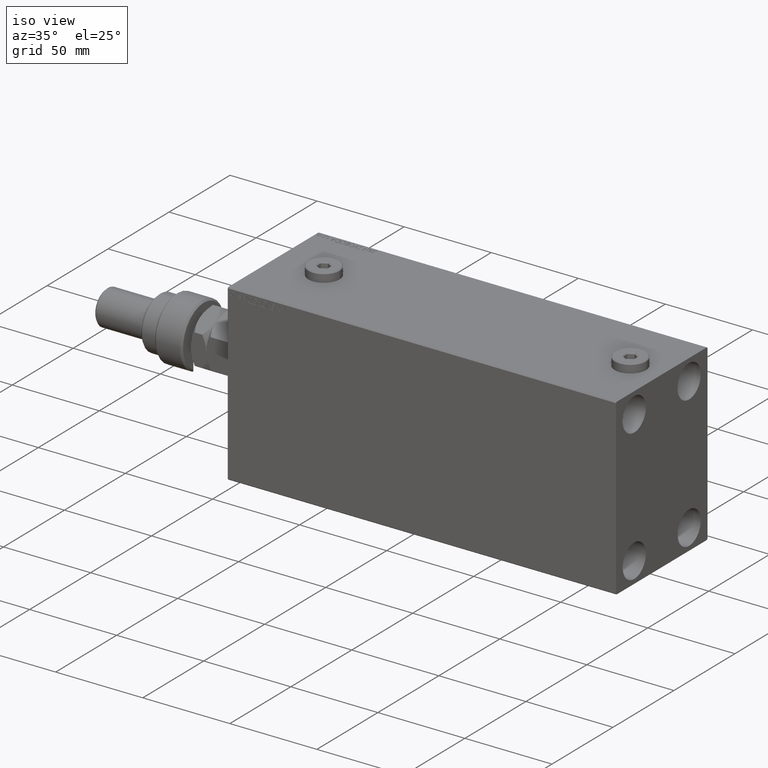
[diagram: clean part render]
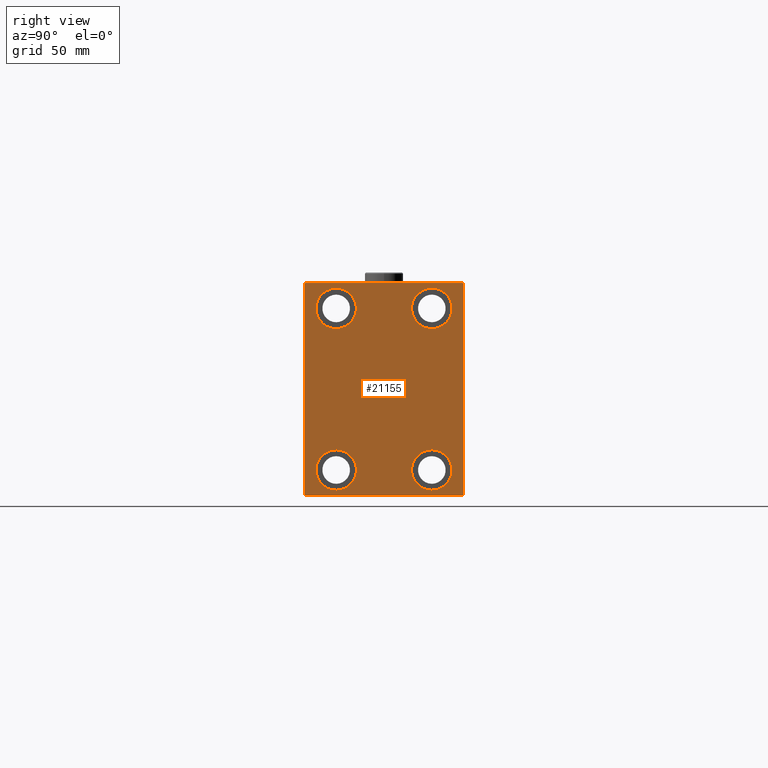
[diagram: tour spotlight — one face highlighted and labeled with its STEP entity id]
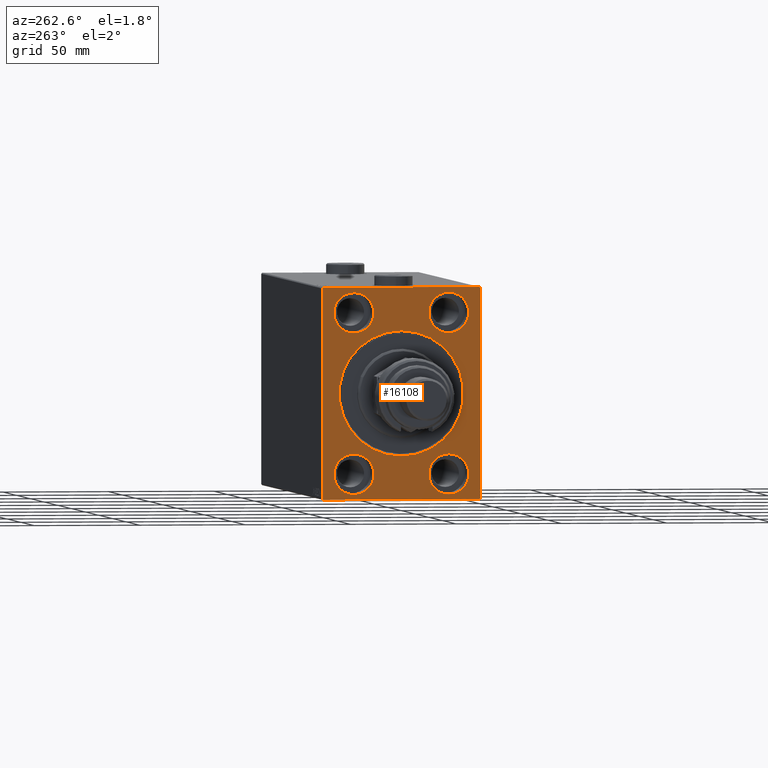
[diagram: tour spotlight — one face highlighted and labeled with its STEP entity id]
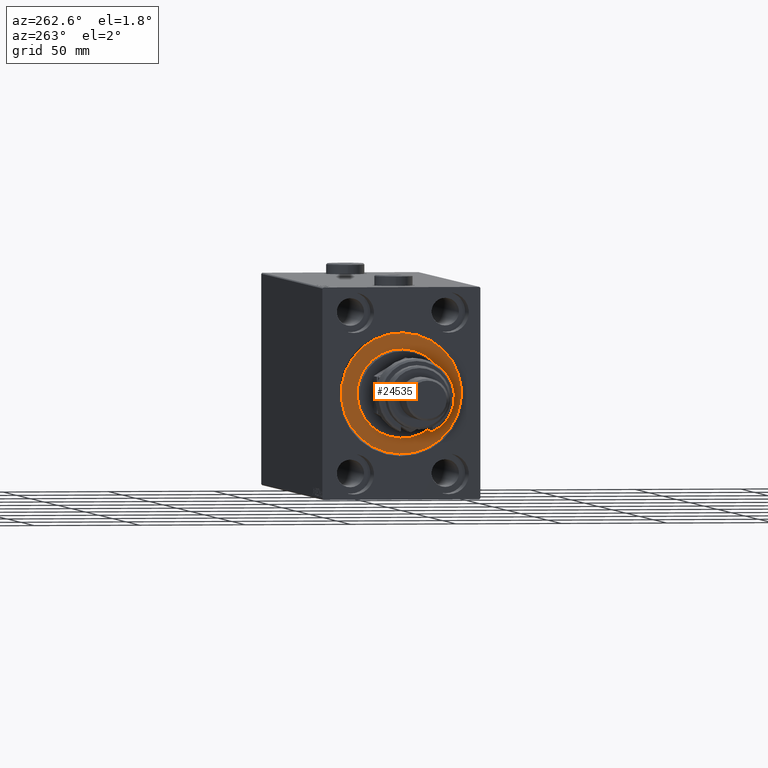
[diagram: tour spotlight — one face highlighted and labeled with its STEP entity id]
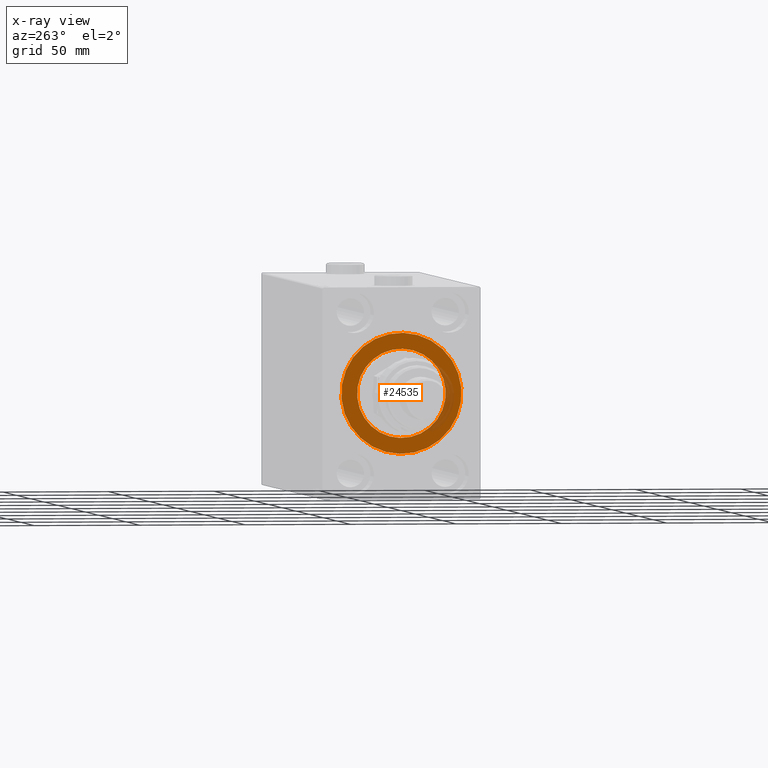
[diagram: x-ray of the same camera — body ghosted, this tour face saturated]
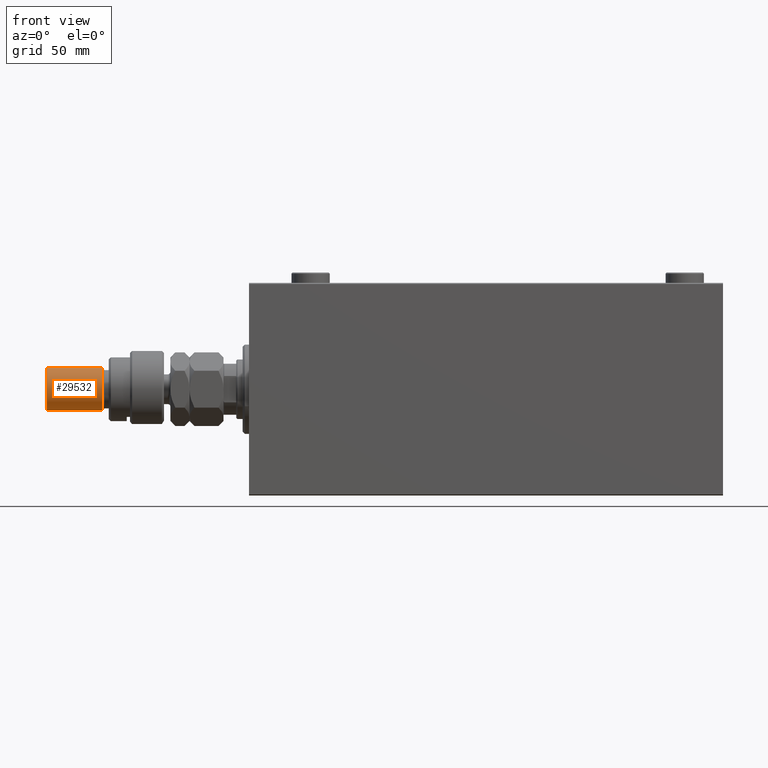
[diagram: tour spotlight — one face highlighted and labeled with its STEP entity id]
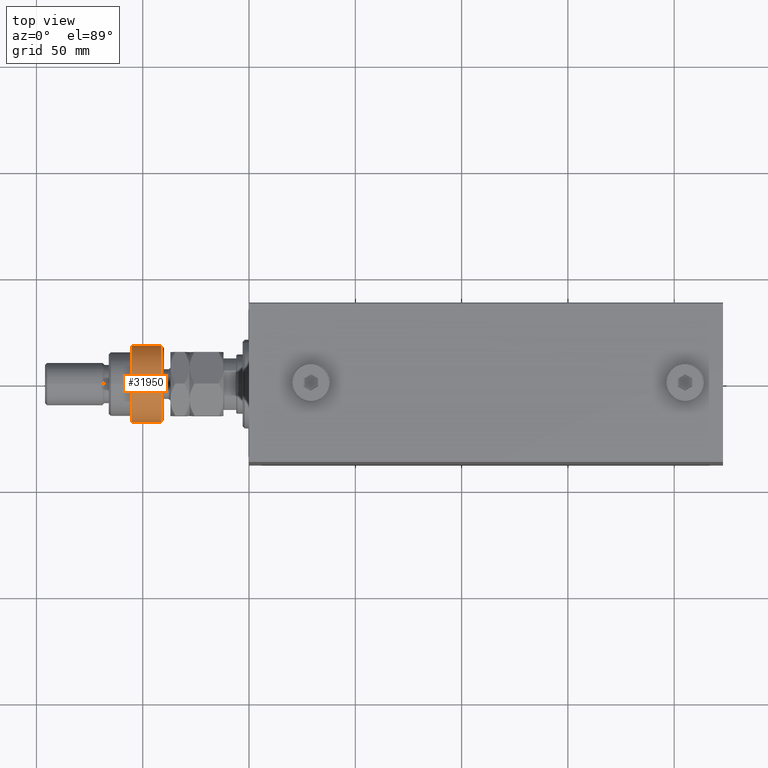
[diagram: tour spotlight — one face highlighted and labeled with its STEP entity id]
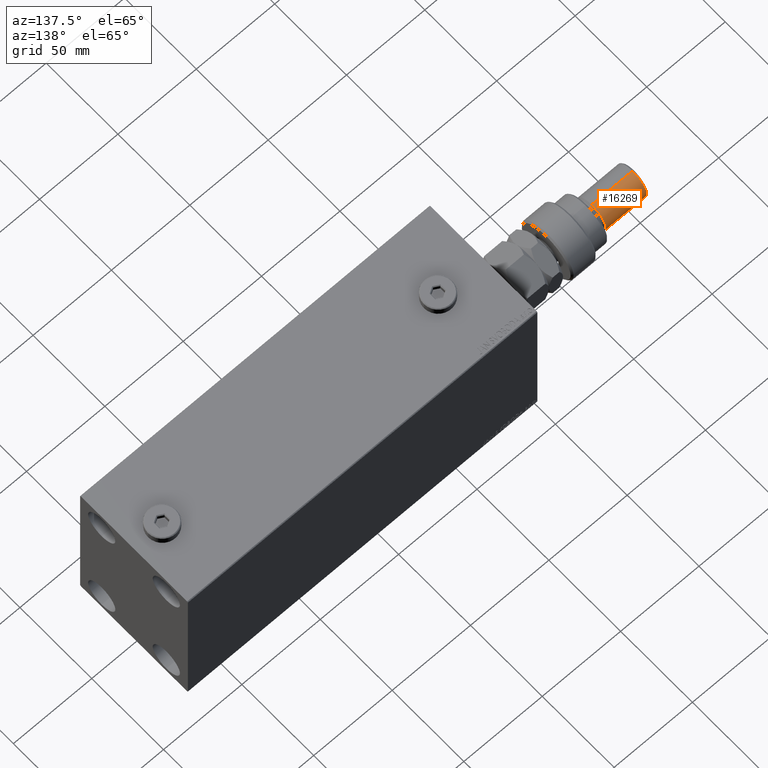
[diagram: tour spotlight — one face highlighted and labeled with its STEP entity id]
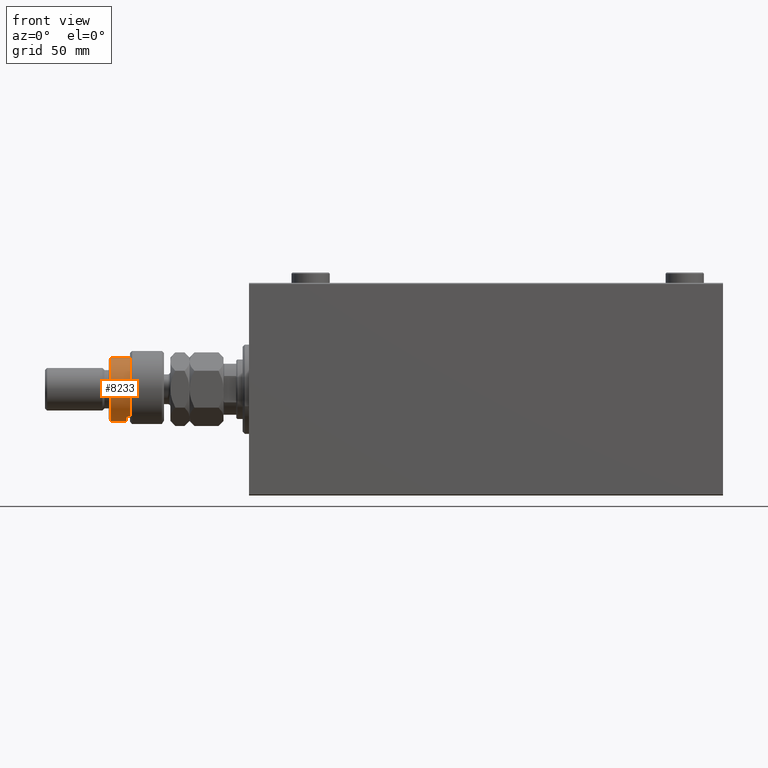
[diagram: tour spotlight — one face highlighted and labeled with its STEP entity id]
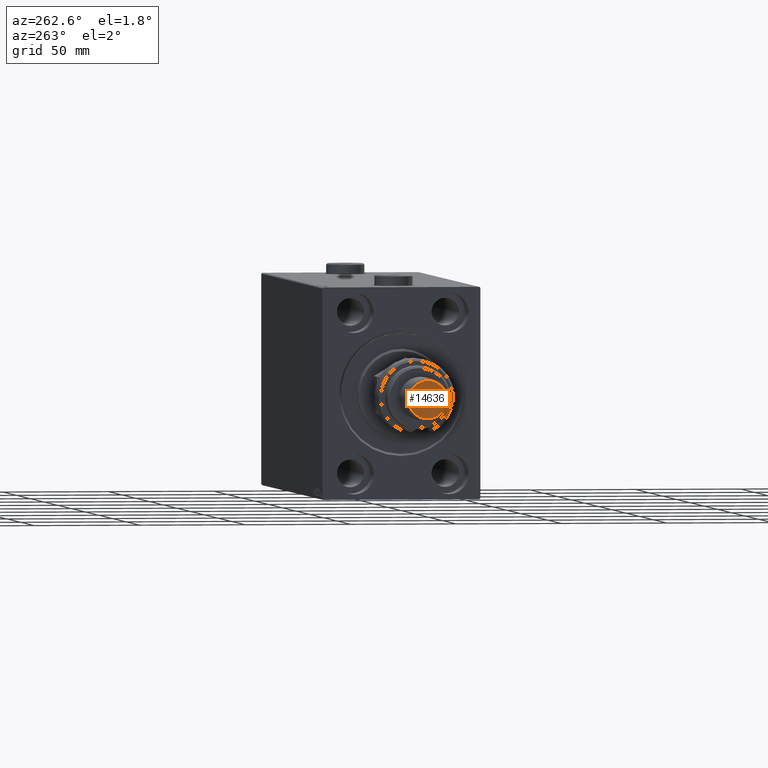
[diagram: tour spotlight — one face highlighted and labeled with its STEP entity id]
A machine part: a face-by-face anatomy tour. The part has 1004 B-rep faces; the first image is the clean iso view, then the 8 largest visible faces are spotlighted one at a time (largest first), each with its STEP entity span.

Face 1 — right view, entity #21155. In plain terms, the highlighted planar face has unit normal (1, 0, 0).
Definition (entity closure, byte-faithful):
#551 = FACE_BOUND ( 'NONE', #29068, .T. ) ;
#569 = DIRECTION ( 'NONE',  ( 0.000000000000000000, 0.000000000000000000, 1.000000000000000000 ) ) ;
#734 = ORIENTED_EDGE ( 'NONE', *, *, #6277, .T. ) ;
#777 = CIRCLE ( 'NONE', #20214, 9.500000000000001776 ) ;
#1447 = AXIS2_PLACEMENT_3D ( 'NONE', #42647, #34868, #6112 ) ;
#1927 = CARTESIAN_POINT ( 'NONE',  ( 223.0000000000000000, -22.50000000000000711, -37.99999999999999289 ) ) ;
#3023 = CIRCLE ( 'NONE', #1447, 9.500000000000001776 ) ;
#3282 = CARTESIAN_POINT ( 'NONE',  ( 223.0000000000000000, 22.49999999999999645, -37.99999999999999289 ) ) ;
#4003 = CIRCLE ( 'NONE', #19553, 9.500000000000001776 ) ;
#4334 = EDGE_CURVE ( 'NONE', #34883, #44647, #29922, .T. ) ;
#4464 = VECTOR ( 'NONE', #5525, 1000.000000000000000 ) ;
#4477 = VECTOR ( 'NONE', #40387, 1000.000000000000000 ) ;
#4586 = VERTEX_POINT ( 'NONE', #37882 ) ;
#4822 = CARTESIAN_POINT ( 'NONE',  ( 223.0000000000000000, 43.50000000000027001, 43.49999999999966604 ) ) ;
#5525 = DIRECTION ( 'NONE',  ( 0.000000000000000000, 1.000000000000000000, 9.251858538542970348E-17 ) ) ;
#5725 = LINE ( 'NONE', #27896, #44378 ) ;
#5938 = CARTESIAN_POINT ( 'NONE',  ( 223.0000000000000000, -22.49999999999999645, 37.99999999999999289 ) ) ;
#6112 = DIRECTION ( 'NONE',  ( 0.000000000000000000, 0.000000000000000000, 1.000000000000000000 ) ) ;
#6277 = EDGE_CURVE ( 'NONE', #24925, #28458, #14151, .T. ) ;
#6389 = VERTEX_POINT ( 'NONE', #38816 ) ;
#6656 = VERTEX_POINT ( 'NONE', #24879 ) ;
#6677 = CARTESIAN_POINT ( 'NONE',  ( 223.0000000000000000, 22.50000000000000355, 37.99999999999999289 ) ) ;
#6855 = VERTEX_POINT ( 'NONE', #9251 ) ;
#7576 = CARTESIAN_POINT ( 'NONE',  ( 223.0000000000000000, -22.50000000000000711, -28.49999999999998934 ) ) ;
#7627 = AXIS2_PLACEMENT_3D ( 'NONE', #44488, #10639, #18430 ) ;
#7675 = EDGE_LOOP ( 'NONE', ( #21370, #44520, #36677, #15826, #29205, #16170, #18230, #27949 ) ) ;
#8181 = CARTESIAN_POINT ( 'NONE',  ( 223.0000000000000000, 22.49999999999999645, -37.99999999999999289 ) ) ;
#8815 = DIRECTION ( 'NONE',  ( 1.000000000000000000, 0.000000000000000000, 0.000000000000000000 ) ) ;
#9251 = CARTESIAN_POINT ( 'NONE',  ( 223.0000000000000000, 37.50000000000000711, -49.50000000000002842 ) ) ;
#10442 = LINE ( 'NONE', #29679, #4477 ) ;
#10639 = DIRECTION ( 'NONE',  ( -1.000000000000000000, -0.000000000000000000, -0.000000000000000000 ) ) ;
#10694 = VECTOR ( 'NONE', #45257, 1000.000000000000000 ) ;
#11321 = DIRECTION ( 'NONE',  ( -0.000000000000000000, 0.7071067811865672237, -0.7071067811865279218 ) ) ;
#11885 = DIRECTION ( 'NONE',  ( 0.000000000000000000, -0.7071067811865573427, -0.7071067811865376918 ) ) ;
#12253 = AXIS2_PLACEMENT_3D ( 'NONE', #26869, #33952, #569 ) ;
#12358 = CARTESIAN_POINT ( 'NONE',  ( 223.0000000000000000, -43.49999999999945288, 43.50000000000066080 ) ) ;
#12549 = CARTESIAN_POINT ( 'NONE',  ( 223.0000000000000000, -22.49999999999999645, 28.49999999999998934 ) ) ;
#12986 = CARTESIAN_POINT ( 'NONE',  ( 223.0000000000000000, 22.49999999999999645, -47.49999999999999289 ) ) ;
#13267 = DIRECTION ( 'NONE',  ( -0.000000000000000000, 0.7071067811865573427, 0.7071067811865376918 ) ) ;
#13570 = EDGE_LOOP ( 'NONE', ( #21979, #734 ) ) ;
#14151 = CIRCLE ( 'NONE', #35168, 9.500000000000001776 ) ;
#14407 = VERTEX_POINT ( 'NONE', #20709 ) ;
#15049 = LINE ( 'NONE', #18468, #46567 ) ;
#15420 = VECTOR ( 'NONE', #11321, 1000.000000000000000 ) ;
#15756 = CARTESIAN_POINT ( 'NONE',  ( 223.0000000000000000, 22.50000000000000355, 47.49999999999999289 ) ) ;
#15764 = CARTESIAN_POINT ( 'NONE',  ( 223.0000000000000000, 37.50000000000000711, -50.00000000000000000 ) ) ;
#15826 = ORIENTED_EDGE ( 'NONE', *, *, #19844, .T. ) ;
#16169 = DIRECTION ( 'NONE',  ( 0.000000000000000000, 0.000000000000000000, 1.000000000000000000 ) ) ;
#16170 = ORIENTED_EDGE ( 'NONE', *, *, #28509, .T. ) ;
#16482 = LINE ( 'NONE', #38886, #4464 ) ;
#16785 = DIRECTION ( 'NONE',  ( 0.000000000000000000, 0.000000000000000000, 1.000000000000000000 ) ) ;
#18230 = ORIENTED_EDGE ( 'NONE', *, *, #35194, .T. ) ;
#18430 = DIRECTION ( 'NONE',  ( 0.000000000000000000, 0.000000000000000000, 1.000000000000000000 ) ) ;
#18468 = CARTESIAN_POINT ( 'NONE',  ( 223.0000000000000000, 37.49999999999999289, 50.00000000000000711 ) ) ;
#18658 = VERTEX_POINT ( 'NONE', #37116 ) ;
#18706 = EDGE_CURVE ( 'NONE', #33035, #6656, #33296, .T. ) ;
#19001 = ORIENTED_EDGE ( 'NONE', *, *, #27488, .T. ) ;
#19318 = CIRCLE ( 'NONE', #7627, 9.500000000000001776 ) ;
#19553 = AXIS2_PLACEMENT_3D ( 'NONE', #3282, #29592, #33007 ) ;
#19844 = EDGE_CURVE ( 'NONE', #6389, #4586, #33501, .T. ) ;
#19950 = EDGE_LOOP ( 'NONE', ( #30440, #40651 ) ) ;
#20015 = CARTESIAN_POINT ( 'NONE',  ( 223.0000000000000000, 0.000000000000000000, 0.000000000000000000 ) ) ;
#20207 = DIRECTION ( 'NONE',  ( -1.000000000000000000, -0.000000000000000000, -0.000000000000000000 ) ) ;
#20214 = AXIS2_PLACEMENT_3D ( 'NONE', #8181, #34725, #45446 ) ;
#20709 = CARTESIAN_POINT ( 'NONE',  ( 223.0000000000000000, 37.00000000000002132, -50.00000000000000000 ) ) ;
#21155 = ADVANCED_FACE ( 'NONE', ( #551, #34178, #38518, #26852, #22955 ), #41705, .T. ) ;
#21370 = ORIENTED_EDGE ( 'NONE', *, *, #25199, .T. ) ;
#21389 = EDGE_CURVE ( 'NONE', #4586, #14407, #16482, .T. ) ;
#21524 = DIRECTION ( 'NONE',  ( -1.000000000000000000, -0.000000000000000000, -0.000000000000000000 ) ) ;
#21979 = ORIENTED_EDGE ( 'NONE', *, *, #46588, .T. ) ;
#22038 = ORIENTED_EDGE ( 'NONE', *, *, #18706, .T. ) ;
#22955 = FACE_OUTER_BOUND ( 'NONE', #7675, .T. ) ;
#23206 = EDGE_CURVE ( 'NONE', #28994, #18658, #19318, .T. ) ;
#24879 = CARTESIAN_POINT ( 'NONE',  ( 223.0000000000000000, 22.50000000000000355, 28.49999999999998934 ) ) ;
#24925 = VERTEX_POINT ( 'NONE', #34358 ) ;
#25199 = EDGE_CURVE ( 'NONE', #43901, #34883, #15049, .T. ) ;
#25243 = VERTEX_POINT ( 'NONE', #44290 ) ;
#26852 = FACE_BOUND ( 'NONE', #19950, .T. ) ;
#26869 = CARTESIAN_POINT ( 'NONE',  ( 223.0000000000000000, 22.50000000000000355, 37.99999999999999289 ) ) ;
#27488 = EDGE_CURVE ( 'NONE', #33637, #25243, #777, .T. ) ;
#27896 = CARTESIAN_POINT ( 'NONE',  ( 223.0000000000000000, 43.49999999999950262, -43.50000000000071054 ) ) ;
#27949 = ORIENTED_EDGE ( 'NONE', *, *, #47046, .T. ) ;
#28106 = VERTEX_POINT ( 'NONE', #34128 ) ;
#28402 = ORIENTED_EDGE ( 'NONE', *, *, #31298, .T. ) ;
#28458 = VERTEX_POINT ( 'NONE', #12549 ) ;
#28509 = EDGE_CURVE ( 'NONE', #14407, #6855, #5725, .T. ) ;
#28994 = VERTEX_POINT ( 'NONE', #7576 ) ;
#29068 = EDGE_LOOP ( 'NONE', ( #19001, #28402 ) ) ;
#29087 = DIRECTION ( 'NONE',  ( 0.000000000000000000, 0.000000000000000000, 1.000000000000000000 ) ) ;
#29205 = ORIENTED_EDGE ( 'NONE', *, *, #21389, .T. ) ;
#29592 = DIRECTION ( 'NONE',  ( -1.000000000000000000, -0.000000000000000000, -0.000000000000000000 ) ) ;
#29679 = CARTESIAN_POINT ( 'NONE',  ( 223.0000000000000000, -37.50000000000000711, 49.99999999999999289 ) ) ;
#29922 = LINE ( 'NONE', #12358, #31999 ) ;
#30248 = AXIS2_PLACEMENT_3D ( 'NONE', #20015, #8815, #38054 ) ;
#30440 = ORIENTED_EDGE ( 'NONE', *, *, #43108, .T. ) ;
#30639 = DIRECTION ( 'NONE',  ( 0.000000000000000000, -1.387778780781445676E-16, 1.000000000000000000 ) ) ;
#30905 = AXIS2_PLACEMENT_3D ( 'NONE', #1927, #20207, #16785 ) ;
#31298 = EDGE_CURVE ( 'NONE', #25243, #33637, #4003, .T. ) ;
#31338 = VECTOR ( 'NONE', #30639, 1000.000000000000000 ) ;
#31765 = DIRECTION ( 'NONE',  ( -1.000000000000000000, -0.000000000000000000, -0.000000000000000000 ) ) ;
#31999 = VECTOR ( 'NONE', #11885, 1000.000000000000114 ) ;
#33007 = DIRECTION ( 'NONE',  ( 0.000000000000000000, 0.000000000000000000, 1.000000000000000000 ) ) ;
#33035 = VERTEX_POINT ( 'NONE', #15756 ) ;
#33156 = CARTESIAN_POINT ( 'NONE',  ( 223.0000000000000000, 37.00000000000002132, 50.00000000000000711 ) ) ;
#33296 = CIRCLE ( 'NONE', #43408, 9.500000000000001776 ) ;
#33501 = LINE ( 'NONE', #44684, #15420 ) ;
#33637 = VERTEX_POINT ( 'NONE', #12986 ) ;
#33809 = LINE ( 'NONE', #15764, #31338 ) ;
#33952 = DIRECTION ( 'NONE',  ( -1.000000000000000000, -0.000000000000000000, -0.000000000000000000 ) ) ;
#34128 = CARTESIAN_POINT ( 'NONE',  ( 223.0000000000000000, 37.49999999999999289, 49.50000000000002842 ) ) ;
#34178 = FACE_BOUND ( 'NONE', #13570, .T. ) ;
#34358 = CARTESIAN_POINT ( 'NONE',  ( 223.0000000000000000, -22.49999999999999645, 47.49999999999999289 ) ) ;
#34725 = DIRECTION ( 'NONE',  ( -1.000000000000000000, -0.000000000000000000, -0.000000000000000000 ) ) ;
#34868 = DIRECTION ( 'NONE',  ( -1.000000000000000000, -0.000000000000000000, -0.000000000000000000 ) ) ;
#34883 = VERTEX_POINT ( 'NONE', #37037 ) ;
#35168 = AXIS2_PLACEMENT_3D ( 'NONE', #5938, #31765, #16169 ) ;
#35194 = EDGE_CURVE ( 'NONE', #6855, #28106, #33809, .T. ) ;
#36677 = ORIENTED_EDGE ( 'NONE', *, *, #43261, .T. ) ;
#37037 = CARTESIAN_POINT ( 'NONE',  ( 223.0000000000000000, -36.99999999999993605, 49.99999999999999289 ) ) ;
#37116 = CARTESIAN_POINT ( 'NONE',  ( 223.0000000000000000, -22.50000000000000711, -47.49999999999999289 ) ) ;
#37243 = LINE ( 'NONE', #4822, #10694 ) ;
#37470 = DIRECTION ( 'NONE',  ( 0.000000000000000000, -1.000000000000000000, -1.850371707708594316E-16 ) ) ;
#37882 = CARTESIAN_POINT ( 'NONE',  ( 223.0000000000000000, -36.99999999999997868, -50.00000000000000711 ) ) ;
#38054 = DIRECTION ( 'NONE',  ( 0.000000000000000000, 0.000000000000000000, -1.000000000000000000 ) ) ;
#38518 = FACE_BOUND ( 'NONE', #39178, .T. ) ;
#38677 = CIRCLE ( 'NONE', #30905, 9.500000000000001776 ) ;
#38816 = CARTESIAN_POINT ( 'NONE',  ( 223.0000000000000000, -37.50000000000000711, -49.50000000000000711 ) ) ;
#38886 = CARTESIAN_POINT ( 'NONE',  ( 223.0000000000000000, -37.50000000000000711, -50.00000000000000711 ) ) ;
#39178 = EDGE_LOOP ( 'NONE', ( #45172, #22038 ) ) ;
#40387 = DIRECTION ( 'NONE',  ( 0.000000000000000000, 0.000000000000000000, -1.000000000000000000 ) ) ;
#40651 = ORIENTED_EDGE ( 'NONE', *, *, #23206, .T. ) ;
#41705 = PLANE ( 'NONE',  #30248 ) ;
#42647 = CARTESIAN_POINT ( 'NONE',  ( 223.0000000000000000, -22.49999999999999645, 37.99999999999999289 ) ) ;
#43108 = EDGE_CURVE ( 'NONE', #18658, #28994, #38677, .T. ) ;
#43261 = EDGE_CURVE ( 'NONE', #44647, #6389, #10442, .T. ) ;
#43408 = AXIS2_PLACEMENT_3D ( 'NONE', #6677, #21524, #29087 ) ;
#43901 = VERTEX_POINT ( 'NONE', #33156 ) ;
#44290 = CARTESIAN_POINT ( 'NONE',  ( 223.0000000000000000, 22.49999999999999645, -28.49999999999998934 ) ) ;
#44378 = VECTOR ( 'NONE', #13267, 1000.000000000000114 ) ;
#44488 = CARTESIAN_POINT ( 'NONE',  ( 223.0000000000000000, -22.50000000000000711, -37.99999999999999289 ) ) ;
#44520 = ORIENTED_EDGE ( 'NONE', *, *, #4334, .T. ) ;
#44647 = VERTEX_POINT ( 'NONE', #47952 ) ;
#44684 = CARTESIAN_POINT ( 'NONE',  ( 223.0000000000000000, -43.49999999999896261, -43.50000000000138556 ) ) ;
#45172 = ORIENTED_EDGE ( 'NONE', *, *, #47615, .T. ) ;
#45257 = DIRECTION ( 'NONE',  ( -0.000000000000000000, -0.7071067811865426878, 0.7071067811865524577 ) ) ;
#45446 = DIRECTION ( 'NONE',  ( 0.000000000000000000, 0.000000000000000000, 1.000000000000000000 ) ) ;
#46567 = VECTOR ( 'NONE', #37470, 1000.000000000000000 ) ;
#46588 = EDGE_CURVE ( 'NONE', #28458, #24925, #3023, .T. ) ;
#47046 = EDGE_CURVE ( 'NONE', #28106, #43901, #37243, .T. ) ;
#47262 = CIRCLE ( 'NONE', #12253, 9.500000000000001776 ) ;
#47615 = EDGE_CURVE ( 'NONE', #6656, #33035, #47262, .T. ) ;
#47952 = CARTESIAN_POINT ( 'NONE',  ( 223.0000000000000000, -37.50000000000000711, 49.49999999999994316 ) ) ;

Face 2 — auxiliary view, entity #16108. In plain terms, the highlighted planar face has unit normal (1, 0, 0).
Definition (entity closure, byte-faithful):
#395 = CIRCLE ( 'NONE', #19073, 29.50000000000000355 ) ;
#434 = CARTESIAN_POINT ( 'NONE',  ( 0.000000000000000000, -36.99999999999997868, -50.00000000000000711 ) ) ;
#874 = CIRCLE ( 'NONE', #29676, 29.50000000000000355 ) ;
#1304 = VERTEX_POINT ( 'NONE', #18694 ) ;
#1401 = CARTESIAN_POINT ( 'NONE',  ( 0.000000000000000000, -37.50000000000000711, 49.49999999999994316 ) ) ;
#2253 = EDGE_CURVE ( 'NONE', #24627, #2466, #10136, .T. ) ;
#2424 = ORIENTED_EDGE ( 'NONE', *, *, #22247, .T. ) ;
#2466 = VERTEX_POINT ( 'NONE', #42475 ) ;
#2479 = AXIS2_PLACEMENT_3D ( 'NONE', #35377, #8587, #9319 ) ;
#3003 = VERTEX_POINT ( 'NONE', #47568 ) ;
#3335 = CARTESIAN_POINT ( 'NONE',  ( 0.000000000000000000, -36.99999999999997868, -50.00000000000000711 ) ) ;
#3352 = ORIENTED_EDGE ( 'NONE', *, *, #42268, .F. ) ;
#4341 = DIRECTION ( 'NONE',  ( -0.000000000000000000, 0.7071067811865573427, 0.7071067811865376918 ) ) ;
#4353 = EDGE_CURVE ( 'NONE', #13904, #2466, #41829, .T. ) ;
#4493 = PLANE ( 'NONE',  #26195 ) ;
#5529 = DIRECTION ( 'NONE',  ( -0.000000000000000000, 0.7071067811865426878, -0.7071067811865524577 ) ) ;
#6091 = ORIENTED_EDGE ( 'NONE', *, *, #17523, .T. ) ;
#6597 = VECTOR ( 'NONE', #9793, 1000.000000000000000 ) ;
#6884 = CARTESIAN_POINT ( 'NONE',  ( 0.000000000000000000, 37.50000000000000711, -49.50000000000002842 ) ) ;
#6902 = ORIENTED_EDGE ( 'NONE', *, *, #11162, .F. ) ;
#7347 = DIRECTION ( 'NONE',  ( 1.000000000000000000, 0.000000000000000000, 0.000000000000000000 ) ) ;
#7524 = AXIS2_PLACEMENT_3D ( 'NONE', #42710, #34936, #24198 ) ;
#7539 = CARTESIAN_POINT ( 'NONE',  ( 0.000000000000000000, 0.000000000000000000, 0.000000000000000000 ) ) ;
#7649 = DIRECTION ( 'NONE',  ( 0.000000000000000000, 0.000000000000000000, 1.000000000000000000 ) ) ;
#8234 = ORIENTED_EDGE ( 'NONE', *, *, #35879, .F. ) ;
#8383 = DIRECTION ( 'NONE',  ( 0.000000000000000000, 0.000000000000000000, -1.000000000000000000 ) ) ;
#8587 = DIRECTION ( 'NONE',  ( -1.000000000000000000, 0.000000000000000000, 0.000000000000000000 ) ) ;
#9148 = VERTEX_POINT ( 'NONE', #46215 ) ;
#9258 = ORIENTED_EDGE ( 'NONE', *, *, #27760, .F. ) ;
#9319 = DIRECTION ( 'NONE',  ( 0.000000000000000000, 0.000000000000000000, 1.000000000000000000 ) ) ;
#9793 = DIRECTION ( 'NONE',  ( 0.000000000000000000, -1.000000000000000000, -1.850371707708594316E-16 ) ) ;
#9948 = EDGE_CURVE ( 'NONE', #29562, #42516, #19761, .T. ) ;
#9990 = CARTESIAN_POINT ( 'NONE',  ( 0.000000000000000000, 3.612708057484691604E-15, -29.50000000000000355 ) ) ;
#10063 = AXIS2_PLACEMENT_3D ( 'NONE', #36470, #24537, #40100 ) ;
#10136 = LINE ( 'NONE', #31833, #19477 ) ;
#10168 = EDGE_LOOP ( 'NONE', ( #24646, #41185 ) ) ;
#11162 = EDGE_CURVE ( 'NONE', #22438, #22387, #43401, .T. ) ;
#11271 = EDGE_CURVE ( 'NONE', #32327, #16595, #24466, .T. ) ;
#11322 = CARTESIAN_POINT ( 'NONE',  ( 0.000000000000000000, 0.000000000000000000, 0.000000000000000000 ) ) ;
#12149 = EDGE_CURVE ( 'NONE', #30994, #32543, #395, .T. ) ;
#12271 = LINE ( 'NONE', #15025, #12628 ) ;
#12434 = DIRECTION ( 'NONE',  ( 0.000000000000000000, 0.000000000000000000, 1.000000000000000000 ) ) ;
#12455 = DIRECTION ( 'NONE',  ( 0.000000000000000000, 0.000000000000000000, 1.000000000000000000 ) ) ;
#12628 = VECTOR ( 'NONE', #42228, 1000.000000000000000 ) ;
#13884 = DIRECTION ( 'NONE',  ( 1.000000000000000000, 0.000000000000000000, 0.000000000000000000 ) ) ;
#13904 = VERTEX_POINT ( 'NONE', #3335 ) ;
#14233 = DIRECTION ( 'NONE',  ( -1.000000000000000000, 0.000000000000000000, 0.000000000000000000 ) ) ;
#14612 = AXIS2_PLACEMENT_3D ( 'NONE', #23414, #27313, #12455 ) ;
#14657 = DIRECTION ( 'NONE',  ( 0.000000000000000000, 0.000000000000000000, -1.000000000000000000 ) ) ;
#14662 = DIRECTION ( 'NONE',  ( 0.000000000000000000, 0.000000000000000000, 1.000000000000000000 ) ) ;
#14828 = ORIENTED_EDGE ( 'NONE', *, *, #27322, .F. ) ;
#14859 = CIRCLE ( 'NONE', #15625, 9.500000000000001776 ) ;
#15025 = CARTESIAN_POINT ( 'NONE',  ( 0.000000000000000000, 37.50000000000000711, -50.00000000000000000 ) ) ;
#15213 = FACE_BOUND ( 'NONE', #18363, .T. ) ;
#15549 = LINE ( 'NONE', #1401, #23167 ) ;
#15625 = AXIS2_PLACEMENT_3D ( 'NONE', #43117, #20956, #24371 ) ;
#15899 = AXIS2_PLACEMENT_3D ( 'NONE', #19503, #45798, #12434 ) ;
#15921 = FACE_BOUND ( 'NONE', #23809, .T. ) ;
#16108 = ADVANCED_FACE ( 'NONE', ( #41031, #15213, #19355, #15921, #45642, #37388 ), #4493, .F. ) ;
#16229 = EDGE_CURVE ( 'NONE', #16595, #32327, #45662, .T. ) ;
#16445 = VECTOR ( 'NONE', #33913, 1000.000000000000114 ) ;
#16595 = VERTEX_POINT ( 'NONE', #36258 ) ;
#17199 = DIRECTION ( 'NONE',  ( 0.000000000000000000, 0.000000000000000000, -1.000000000000000000 ) ) ;
#17523 = EDGE_CURVE ( 'NONE', #22438, #41468, #24519, .T. ) ;
#18363 = EDGE_LOOP ( 'NONE', ( #8234, #9258 ) ) ;
#18694 = CARTESIAN_POINT ( 'NONE',  ( 0.000000000000000000, 22.50000000000000355, 47.49999999999999289 ) ) ;
#18797 = CARTESIAN_POINT ( 'NONE',  ( 0.000000000000000000, 0.000000000000000000, 0.000000000000000000 ) ) ;
#19073 = AXIS2_PLACEMENT_3D ( 'NONE', #18797, #7347, #14657 ) ;
#19355 = FACE_BOUND ( 'NONE', #10168, .T. ) ;
#19363 = CARTESIAN_POINT ( 'NONE',  ( 0.000000000000000000, -22.50000000000000711, -28.49999999999998934 ) ) ;
#19436 = ORIENTED_EDGE ( 'NONE', *, *, #33593, .F. ) ;
#19477 = VECTOR ( 'NONE', #17199, 1000.000000000000000 ) ;
#19503 = CARTESIAN_POINT ( 'NONE',  ( 0.000000000000000000, -22.49999999999999645, 37.99999999999999289 ) ) ;
#19761 = CIRCLE ( 'NONE', #36884, 9.500000000000001776 ) ;
#20272 = ORIENTED_EDGE ( 'NONE', *, *, #4353, .T. ) ;
#20338 = VECTOR ( 'NONE', #30164, 1000.000000000000000 ) ;
#20864 = CARTESIAN_POINT ( 'NONE',  ( 0.000000000000000000, 37.00000000000002132, 50.00000000000000711 ) ) ;
#20956 = DIRECTION ( 'NONE',  ( -1.000000000000000000, 0.000000000000000000, 0.000000000000000000 ) ) ;
#20976 = CIRCLE ( 'NONE', #10063, 9.500000000000001776 ) ;
#21692 = DIRECTION ( 'NONE',  ( 0.000000000000000000, 1.000000000000000000, 9.251858538542970348E-17 ) ) ;
#21879 = EDGE_CURVE ( 'NONE', #1304, #3003, #34821, .T. ) ;
#22247 = EDGE_CURVE ( 'NONE', #24627, #22387, #15549, .T. ) ;
#22387 = VERTEX_POINT ( 'NONE', #39856 ) ;
#22438 = VERTEX_POINT ( 'NONE', #44482 ) ;
#22731 = ORIENTED_EDGE ( 'NONE', *, *, #21879, .F. ) ;
#23167 = VECTOR ( 'NONE', #4341, 1000.000000000000114 ) ;
#23414 = CARTESIAN_POINT ( 'NONE',  ( 0.000000000000000000, 22.50000000000000355, 37.99999999999999289 ) ) ;
#23809 = EDGE_LOOP ( 'NONE', ( #22731, #35547 ) ) ;
#24198 = DIRECTION ( 'NONE',  ( 0.000000000000000000, 0.000000000000000000, 1.000000000000000000 ) ) ;
#24371 = DIRECTION ( 'NONE',  ( 0.000000000000000000, 0.000000000000000000, 1.000000000000000000 ) ) ;
#24466 = CIRCLE ( 'NONE', #15899, 9.500000000000001776 ) ;
#24519 = LINE ( 'NONE', #20864, #28572 ) ;
#24537 = DIRECTION ( 'NONE',  ( -1.000000000000000000, 0.000000000000000000, 0.000000000000000000 ) ) ;
#24627 = VERTEX_POINT ( 'NONE', #32115 ) ;
#24646 = ORIENTED_EDGE ( 'NONE', *, *, #11271, .F. ) ;
#25387 = LINE ( 'NONE', #6884, #16445 ) ;
#25592 = CARTESIAN_POINT ( 'NONE',  ( 0.000000000000000000, -37.50000000000000711, -50.00000000000000711 ) ) ;
#26074 = CARTESIAN_POINT ( 'NONE',  ( 0.000000000000000000, 37.00000000000002132, -50.00000000000000000 ) ) ;
#26153 = CARTESIAN_POINT ( 'NONE',  ( 0.000000000000000000, -22.50000000000000711, -47.49999999999999289 ) ) ;
#26195 = AXIS2_PLACEMENT_3D ( 'NONE', #11322, #34689, #8383 ) ;
#27313 = DIRECTION ( 'NONE',  ( -1.000000000000000000, 0.000000000000000000, 0.000000000000000000 ) ) ;
#27322 = EDGE_CURVE ( 'NONE', #42516, #29562, #20976, .T. ) ;
#27760 = EDGE_CURVE ( 'NONE', #28650, #9148, #39675, .T. ) ;
#28572 = VECTOR ( 'NONE', #5529, 1000.000000000000000 ) ;
#28650 = VERTEX_POINT ( 'NONE', #30772 ) ;
#28760 = DIRECTION ( 'NONE',  ( 0.000000000000000000, 0.000000000000000000, -1.000000000000000000 ) ) ;
#29562 = VERTEX_POINT ( 'NONE', #26153 ) ;
#29676 = AXIS2_PLACEMENT_3D ( 'NONE', #7539, #13884, #28760 ) ;
#29825 = CARTESIAN_POINT ( 'NONE',  ( 0.000000000000000000, 22.49999999999999645, -37.99999999999999289 ) ) ;
#30164 = DIRECTION ( 'NONE',  ( -0.000000000000000000, -0.7071067811865672237, 0.7071067811865279218 ) ) ;
#30772 = CARTESIAN_POINT ( 'NONE',  ( 0.000000000000000000, 22.49999999999999645, -47.49999999999999289 ) ) ;
#30845 = EDGE_CURVE ( 'NONE', #3003, #1304, #14859, .T. ) ;
#30994 = VERTEX_POINT ( 'NONE', #9990 ) ;
#31531 = EDGE_CURVE ( 'NONE', #42849, #42902, #25387, .T. ) ;
#31787 = EDGE_CURVE ( 'NONE', #32543, #30994, #874, .T. ) ;
#31833 = CARTESIAN_POINT ( 'NONE',  ( 0.000000000000000000, -37.50000000000000711, 49.99999999999999289 ) ) ;
#31971 = CARTESIAN_POINT ( 'NONE',  ( 0.000000000000000000, 37.49999999999999289, 50.00000000000000711 ) ) ;
#32115 = CARTESIAN_POINT ( 'NONE',  ( 0.000000000000000000, -37.50000000000000711, 49.49999999999994316 ) ) ;
#32327 = VERTEX_POINT ( 'NONE', #45941 ) ;
#32543 = VERTEX_POINT ( 'NONE', #42889 ) ;
#32706 = DIRECTION ( 'NONE',  ( -1.000000000000000000, 0.000000000000000000, 0.000000000000000000 ) ) ;
#32730 = EDGE_LOOP ( 'NONE', ( #14828, #41380 ) ) ;
#32908 = CIRCLE ( 'NONE', #2479, 9.500000000000001776 ) ;
#33593 = EDGE_CURVE ( 'NONE', #42849, #41468, #12271, .T. ) ;
#33913 = DIRECTION ( 'NONE',  ( 0.000000000000000000, -0.7071067811865573427, -0.7071067811865376918 ) ) ;
#34689 = DIRECTION ( 'NONE',  ( 1.000000000000000000, 0.000000000000000000, 0.000000000000000000 ) ) ;
#34800 = VECTOR ( 'NONE', #21692, 1000.000000000000000 ) ;
#34818 = ORIENTED_EDGE ( 'NONE', *, *, #12149, .T. ) ;
#34821 = CIRCLE ( 'NONE', #14612, 9.500000000000001776 ) ;
#34936 = DIRECTION ( 'NONE',  ( -1.000000000000000000, 0.000000000000000000, 0.000000000000000000 ) ) ;
#35377 = CARTESIAN_POINT ( 'NONE',  ( 0.000000000000000000, 22.49999999999999645, -37.99999999999999289 ) ) ;
#35547 = ORIENTED_EDGE ( 'NONE', *, *, #30845, .F. ) ;
#35879 = EDGE_CURVE ( 'NONE', #9148, #28650, #32908, .T. ) ;
#36258 = CARTESIAN_POINT ( 'NONE',  ( 0.000000000000000000, -22.49999999999999645, 28.49999999999998934 ) ) ;
#36470 = CARTESIAN_POINT ( 'NONE',  ( 0.000000000000000000, -22.50000000000000711, -37.99999999999999289 ) ) ;
#36834 = CARTESIAN_POINT ( 'NONE',  ( 0.000000000000000000, -22.50000000000000711, -37.99999999999999289 ) ) ;
#36884 = AXIS2_PLACEMENT_3D ( 'NONE', #36834, #32706, #14662 ) ;
#37388 = FACE_OUTER_BOUND ( 'NONE', #48159, .T. ) ;
#38390 = CARTESIAN_POINT ( 'NONE',  ( 0.000000000000000000, 37.49999999999999289, 49.50000000000002842 ) ) ;
#38958 = EDGE_LOOP ( 'NONE', ( #40678, #34818 ) ) ;
#39129 = ORIENTED_EDGE ( 'NONE', *, *, #2253, .F. ) ;
#39475 = CARTESIAN_POINT ( 'NONE',  ( 0.000000000000000000, 37.50000000000000711, -49.50000000000002842 ) ) ;
#39675 = CIRCLE ( 'NONE', #40443, 9.500000000000001776 ) ;
#39856 = CARTESIAN_POINT ( 'NONE',  ( 0.000000000000000000, -36.99999999999993605, 49.99999999999999289 ) ) ;
#40100 = DIRECTION ( 'NONE',  ( 0.000000000000000000, 0.000000000000000000, 1.000000000000000000 ) ) ;
#40443 = AXIS2_PLACEMENT_3D ( 'NONE', #29825, #14233, #7649 ) ;
#40678 = ORIENTED_EDGE ( 'NONE', *, *, #31787, .T. ) ;
#41031 = FACE_BOUND ( 'NONE', #38958, .T. ) ;
#41185 = ORIENTED_EDGE ( 'NONE', *, *, #16229, .F. ) ;
#41301 = ORIENTED_EDGE ( 'NONE', *, *, #31531, .T. ) ;
#41380 = ORIENTED_EDGE ( 'NONE', *, *, #9948, .F. ) ;
#41468 = VERTEX_POINT ( 'NONE', #38390 ) ;
#41829 = LINE ( 'NONE', #434, #20338 ) ;
#42228 = DIRECTION ( 'NONE',  ( 0.000000000000000000, -1.387778780781445676E-16, 1.000000000000000000 ) ) ;
#42268 = EDGE_CURVE ( 'NONE', #13904, #42902, #47507, .T. ) ;
#42475 = CARTESIAN_POINT ( 'NONE',  ( 0.000000000000000000, -37.50000000000000711, -49.50000000000000711 ) ) ;
#42516 = VERTEX_POINT ( 'NONE', #19363 ) ;
#42710 = CARTESIAN_POINT ( 'NONE',  ( 0.000000000000000000, -22.49999999999999645, 37.99999999999999289 ) ) ;
#42849 = VERTEX_POINT ( 'NONE', #39475 ) ;
#42889 = CARTESIAN_POINT ( 'NONE',  ( 0.000000000000000000, 0.000000000000000000, 29.50000000000000355 ) ) ;
#42902 = VERTEX_POINT ( 'NONE', #26074 ) ;
#43117 = CARTESIAN_POINT ( 'NONE',  ( 0.000000000000000000, 22.50000000000000355, 37.99999999999999289 ) ) ;
#43401 = LINE ( 'NONE', #31971, #6597 ) ;
#44482 = CARTESIAN_POINT ( 'NONE',  ( 0.000000000000000000, 37.00000000000002132, 50.00000000000000711 ) ) ;
#45642 = FACE_BOUND ( 'NONE', #32730, .T. ) ;
#45662 = CIRCLE ( 'NONE', #7524, 9.500000000000001776 ) ;
#45798 = DIRECTION ( 'NONE',  ( -1.000000000000000000, 0.000000000000000000, 0.000000000000000000 ) ) ;
#45941 = CARTESIAN_POINT ( 'NONE',  ( 0.000000000000000000, -22.49999999999999645, 47.49999999999999289 ) ) ;
#46215 = CARTESIAN_POINT ( 'NONE',  ( 0.000000000000000000, 22.49999999999999645, -28.49999999999998934 ) ) ;
#47507 = LINE ( 'NONE', #25592, #34800 ) ;
#47568 = CARTESIAN_POINT ( 'NONE',  ( 0.000000000000000000, 22.50000000000000355, 28.49999999999998934 ) ) ;
#48159 = EDGE_LOOP ( 'NONE', ( #39129, #2424, #6902, #6091, #19436, #41301, #3352, #20272 ) ) ;

Face 3 — auxiliary view, entity #24535. An x-ray twin of the same camera follows (body ghosted, this face saturated) — the face is partly hidden behind the body. In plain terms, the highlighted planar face has unit normal (1, 0, -0).
Definition (entity closure, byte-faithful):
#1174 = DIRECTION ( 'NONE',  ( 0.000000000000000000, 0.000000000000000000, 1.000000000000000000 ) ) ;
#1903 = DIRECTION ( 'NONE',  ( -1.000000000000000000, 0.000000000000000000, 0.000000000000000000 ) ) ;
#3539 = CARTESIAN_POINT ( 'NONE',  ( 0.000000000000000000, 0.000000000000000000, -28.50000000000000000 ) ) ;
#4361 = DIRECTION ( 'NONE',  ( 0.000000000000000000, 0.000000000000000000, -1.000000000000000000 ) ) ;
#4814 = VERTEX_POINT ( 'NONE', #42429 ) ;
#5868 = AXIS2_PLACEMENT_3D ( 'NONE', #12672, #42382, #9019 ) ;
#7102 = DIRECTION ( 'NONE',  ( 1.000000000000000000, -0.000000000000000000, 0.000000000000000000 ) ) ;
#8499 = PLANE ( 'NONE',  #37226 ) ;
#9019 = DIRECTION ( 'NONE',  ( 0.000000000000000000, 0.000000000000000000, 1.000000000000000000 ) ) ;
#9230 = FACE_BOUND ( 'NONE', #45780, .T. ) ;
#10037 = CARTESIAN_POINT ( 'NONE',  ( 0.000000000000000000, 0.000000000000000000, 0.000000000000000000 ) ) ;
#11210 = ORIENTED_EDGE ( 'NONE', *, *, #45681, .F. ) ;
#12672 = CARTESIAN_POINT ( 'NONE',  ( 0.000000000000000000, 0.000000000000000000, 0.000000000000000000 ) ) ;
#15085 = CARTESIAN_POINT ( 'NONE',  ( 0.000000000000000000, 0.000000000000000000, 0.000000000000000000 ) ) ;
#16313 = AXIS2_PLACEMENT_3D ( 'NONE', #10037, #7102, #21232 ) ;
#16762 = DIRECTION ( 'NONE',  ( 0.000000000000000000, 0.000000000000000000, 1.000000000000000000 ) ) ;
#20101 = CIRCLE ( 'NONE', #38775, 21.00000000000000000 ) ;
#21014 = CIRCLE ( 'NONE', #16313, 21.00000000000000000 ) ;
#21232 = DIRECTION ( 'NONE',  ( 0.000000000000000000, 0.000000000000000000, -1.000000000000000000 ) ) ;
#22591 = CARTESIAN_POINT ( 'NONE',  ( 0.000000000000000000, 3.490243377569956456E-15, 28.50000000000000000 ) ) ;
#23105 = CARTESIAN_POINT ( 'NONE',  ( 0.000000000000000000, 0.000000000000000000, 0.000000000000000000 ) ) ;
#24189 = ORIENTED_EDGE ( 'NONE', *, *, #28047, .F. ) ;
#24349 = CARTESIAN_POINT ( 'NONE',  ( 0.000000000000000000, 0.000000000000000000, 21.00000000000000000 ) ) ;
#24459 = EDGE_CURVE ( 'NONE', #38074, #4814, #20101, .T. ) ;
#24535 = ADVANCED_FACE ( 'NONE', ( #9230, #45998 ), #8499, .F. ) ;
#24825 = ORIENTED_EDGE ( 'NONE', *, *, #24459, .F. ) ;
#28047 = EDGE_CURVE ( 'NONE', #4814, #38074, #21014, .T. ) ;
#29781 = ORIENTED_EDGE ( 'NONE', *, *, #38825, .F. ) ;
#31781 = CIRCLE ( 'NONE', #37989, 28.50000000000000000 ) ;
#35108 = VERTEX_POINT ( 'NONE', #22591 ) ;
#37226 = AXIS2_PLACEMENT_3D ( 'NONE', #42344, #1903, #16762 ) ;
#37989 = AXIS2_PLACEMENT_3D ( 'NONE', #23105, #42339, #1174 ) ;
#38074 = VERTEX_POINT ( 'NONE', #24349 ) ;
#38775 = AXIS2_PLACEMENT_3D ( 'NONE', #15085, #44796, #4361 ) ;
#38825 = EDGE_CURVE ( 'NONE', #35108, #42470, #40875, .T. ) ;
#40875 = CIRCLE ( 'NONE', #5868, 28.50000000000000000 ) ;
#42339 = DIRECTION ( 'NONE',  ( -1.000000000000000000, 0.000000000000000000, 0.000000000000000000 ) ) ;
#42344 = CARTESIAN_POINT ( 'NONE',  ( 0.000000000000000000, 0.000000000000000000, 0.000000000000000000 ) ) ;
#42382 = DIRECTION ( 'NONE',  ( -1.000000000000000000, 0.000000000000000000, 0.000000000000000000 ) ) ;
#42429 = CARTESIAN_POINT ( 'NONE',  ( 0.000000000000000000, 2.571758278209441661E-15, -21.00000000000000000 ) ) ;
#42470 = VERTEX_POINT ( 'NONE', #3539 ) ;
#44796 = DIRECTION ( 'NONE',  ( 1.000000000000000000, -0.000000000000000000, 0.000000000000000000 ) ) ;
#45681 = EDGE_CURVE ( 'NONE', #42470, #35108, #31781, .T. ) ;
#45780 = EDGE_LOOP ( 'NONE', ( #24825, #24189 ) ) ;
#45998 = FACE_OUTER_BOUND ( 'NONE', #47277, .T. ) ;
#47277 = EDGE_LOOP ( 'NONE', ( #11210, #29781 ) ) ;

Face 4 — front view, entity #29532. In plain terms, the highlighted cylindrical surface (edge-blend (fillet) strip) has radius 10 mm, axis along (1, -0, -0).
Definition (entity closure, byte-faithful):
#2107 = CARTESIAN_POINT ( 'NONE',  ( 0.000000000000000000, 0.000000000000000000, 54.99999999999998579 ) ) ;
#2173 = AXIS2_PLACEMENT_3D ( 'NONE', #20965, #39455, #28521 ) ;
#2364 = VERTEX_POINT ( 'NONE', #26676 ) ;
#4946 = CYLINDRICAL_SURFACE ( 'NONE', #38145, 10.00000000000000000 ) ;
#6073 = CIRCLE ( 'NONE', #2173, 10.00000000000000000 ) ;
#6126 = ORIENTED_EDGE ( 'NONE', *, *, #33552, .F. ) ;
#6372 = ORIENTED_EDGE ( 'NONE', *, *, #19234, .T. ) ;
#7666 = VERTEX_POINT ( 'NONE', #8056 ) ;
#8056 = CARTESIAN_POINT ( 'NONE',  ( -10.00000000000000000, 0.000000000000000000, 29.00000000000000711 ) ) ;
#8981 = CARTESIAN_POINT ( 'NONE',  ( -10.00000000000000000, 0.000000000000000000, 56.00000000000000711 ) ) ;
#11543 = DIRECTION ( 'NONE',  ( -1.000000000000000000, 0.000000000000000000, 0.000000000000000000 ) ) ;
#12518 = VERTEX_POINT ( 'NONE', #26995 ) ;
#14795 = DIRECTION ( 'NONE',  ( -0.000000000000000000, -0.000000000000000000, -1.000000000000000000 ) ) ;
#17974 = LINE ( 'NONE', #32837, #32078 ) ;
#19234 = EDGE_CURVE ( 'NONE', #7666, #36260, #6073, .T. ) ;
#20616 = DIRECTION ( 'NONE',  ( 1.000000000000000000, 0.000000000000000000, 0.000000000000000000 ) ) ;
#20965 = CARTESIAN_POINT ( 'NONE',  ( 0.000000000000000000, 0.000000000000000000, 29.00000000000000711 ) ) ;
#21329 = EDGE_CURVE ( 'NONE', #12518, #2364, #38021, .T. ) ;
#26312 = ORIENTED_EDGE ( 'NONE', *, *, #21329, .T. ) ;
#26676 = CARTESIAN_POINT ( 'NONE',  ( -10.00000000000000000, 0.000000000000000000, 54.99999999999998579 ) ) ;
#26995 = CARTESIAN_POINT ( 'NONE',  ( 10.00000000000000000, 1.224646799147353256E-15, 54.99999999999998579 ) ) ;
#27943 = DIRECTION ( 'NONE',  ( 0.000000000000000000, 0.000000000000000000, -1.000000000000000000 ) ) ;
#28457 = DIRECTION ( 'NONE',  ( -0.000000000000000000, -0.000000000000000000, -1.000000000000000000 ) ) ;
#28521 = DIRECTION ( 'NONE',  ( 1.000000000000000000, 0.000000000000000000, 0.000000000000000000 ) ) ;
#29532 = ADVANCED_FACE ( 'NONE', ( #45866 ), #4946, .T. ) ;
#31104 = CARTESIAN_POINT ( 'NONE',  ( 10.00000000000000000, 1.224646799147353256E-15, 29.00000000000000711 ) ) ;
#31391 = LINE ( 'NONE', #8981, #44475 ) ;
#32064 = EDGE_CURVE ( 'NONE', #2364, #7666, #31391, .T. ) ;
#32078 = VECTOR ( 'NONE', #14795, 1000.000000000000000 ) ;
#32837 = CARTESIAN_POINT ( 'NONE',  ( 10.00000000000000000, 1.224646799147353256E-15, 56.00000000000000711 ) ) ;
#33552 = EDGE_CURVE ( 'NONE', #12518, #36260, #17974, .T. ) ;
#36130 = EDGE_LOOP ( 'NONE', ( #6126, #26312, #37992, #6372 ) ) ;
#36260 = VERTEX_POINT ( 'NONE', #31104 ) ;
#37992 = ORIENTED_EDGE ( 'NONE', *, *, #32064, .T. ) ;
#38021 = CIRCLE ( 'NONE', #45805, 10.00000000000000000 ) ;
#38145 = AXIS2_PLACEMENT_3D ( 'NONE', #44906, #41974, #11543 ) ;
#39455 = DIRECTION ( 'NONE',  ( -0.000000000000000000, -0.000000000000000000, 1.000000000000000000 ) ) ;
#41974 = DIRECTION ( 'NONE',  ( -0.000000000000000000, -0.000000000000000000, -1.000000000000000000 ) ) ;
#44475 = VECTOR ( 'NONE', #28457, 1000.000000000000000 ) ;
#44906 = CARTESIAN_POINT ( 'NONE',  ( 0.000000000000000000, 0.000000000000000000, 56.00000000000000711 ) ) ;
#45805 = AXIS2_PLACEMENT_3D ( 'NONE', #2107, #27943, #20616 ) ;
#45866 = FACE_OUTER_BOUND ( 'NONE', #36130, .T. ) ;

Face 5 — top view, entity #31950. In plain terms, the highlighted cylindrical surface (partial cylindrical patch) has radius 18 mm, axis along (1, -0, -0).
Definition (entity closure, byte-faithful):
#875 = DIRECTION ( 'NONE',  ( -0.000000000000000000, -0.000000000000000000, 1.000000000000000000 ) ) ;
#2171 = DIRECTION ( 'NONE',  ( 1.000000000000000000, 0.000000000000000000, 0.000000000000000000 ) ) ;
#2480 = DIRECTION ( 'NONE',  ( 1.000000000000000000, 0.000000000000000000, 0.000000000000000000 ) ) ;
#3810 = LINE ( 'NONE', #18669, #15377 ) ;
#7147 = CARTESIAN_POINT ( 'NONE',  ( 18.00000000000000000, 0.000000000000000000, 1.000000000000011324 ) ) ;
#7632 = EDGE_CURVE ( 'NONE', #36771, #19100, #17367, .T. ) ;
#9231 = CARTESIAN_POINT ( 'NONE',  ( 0.000000000000000000, 0.000000000000000000, 16.00000000000000000 ) ) ;
#11153 = AXIS2_PLACEMENT_3D ( 'NONE', #43628, #43868, #2480 ) ;
#12072 = CARTESIAN_POINT ( 'NONE',  ( 0.000000000000000000, 0.000000000000000000, 1.000000000000011324 ) ) ;
#12633 = CYLINDRICAL_SURFACE ( 'NONE', #26546, 18.00000000000000000 ) ;
#13605 = DIRECTION ( 'NONE',  ( -0.000000000000000000, -0.000000000000000000, -1.000000000000000000 ) ) ;
#15377 = VECTOR ( 'NONE', #33531, 1000.000000000000000 ) ;
#15735 = DIRECTION ( 'NONE',  ( 1.000000000000000000, 0.000000000000000000, 0.000000000000000000 ) ) ;
#15774 = EDGE_LOOP ( 'NONE', ( #20078, #33537, #42307, #22351, #19380 ) ) ;
#17367 = CIRCLE ( 'NONE', #11153, 18.00000000000000000 ) ;
#17684 = VECTOR ( 'NONE', #13605, 1000.000000000000000 ) ;
#17762 = CIRCLE ( 'NONE', #35681, 18.00000000000000000 ) ;
#18156 = CARTESIAN_POINT ( 'NONE',  ( -16.36306817195357155, -7.500000000000000000, 14.99999999999999645 ) ) ;
#18669 = CARTESIAN_POINT ( 'NONE',  ( -16.36306817195357155, 7.500000000000000000, 17.50000000000000000 ) ) ;
#19100 = VERTEX_POINT ( 'NONE', #44603 ) ;
#19380 = ORIENTED_EDGE ( 'NONE', *, *, #7632, .T. ) ;
#20078 = ORIENTED_EDGE ( 'NONE', *, *, #22498, .F. ) ;
#21399 = DIRECTION ( 'NONE',  ( 0.000000000000000000, 0.000000000000000000, -1.000000000000000000 ) ) ;
#21406 = VERTEX_POINT ( 'NONE', #43748 ) ;
#22351 = ORIENTED_EDGE ( 'NONE', *, *, #45138, .T. ) ;
#22498 = EDGE_CURVE ( 'NONE', #25294, #19100, #3810, .T. ) ;
#24078 = DIRECTION ( 'NONE',  ( -1.000000000000000000, 0.000000000000000000, 0.000000000000000000 ) ) ;
#24826 = CARTESIAN_POINT ( 'NONE',  ( 0.000000000000000000, 0.000000000000000000, 14.99999999999999645 ) ) ;
#25294 = VERTEX_POINT ( 'NONE', #38174 ) ;
#26546 = AXIS2_PLACEMENT_3D ( 'NONE', #9231, #46237, #24078 ) ;
#28247 = LINE ( 'NONE', #43088, #17684 ) ;
#29169 = AXIS2_PLACEMENT_3D ( 'NONE', #24826, #21399, #2171 ) ;
#31950 = ADVANCED_FACE ( 'NONE', ( #43066 ), #12633, .T. ) ;
#33531 = DIRECTION ( 'NONE',  ( -0.000000000000000000, -0.000000000000000000, -1.000000000000000000 ) ) ;
#33537 = ORIENTED_EDGE ( 'NONE', *, *, #37246, .T. ) ;
#35681 = AXIS2_PLACEMENT_3D ( 'NONE', #12072, #875, #15735 ) ;
#36771 = VERTEX_POINT ( 'NONE', #7147 ) ;
#37246 = EDGE_CURVE ( 'NONE', #25294, #41661, #40063, .T. ) ;
#38174 = CARTESIAN_POINT ( 'NONE',  ( -16.36306817195357155, 7.500000000000000000, 14.99999999999999645 ) ) ;
#40063 = CIRCLE ( 'NONE', #29169, 18.00000000000000000 ) ;
#41661 = VERTEX_POINT ( 'NONE', #18156 ) ;
#42307 = ORIENTED_EDGE ( 'NONE', *, *, #43207, .T. ) ;
#43066 = FACE_OUTER_BOUND ( 'NONE', #15774, .T. ) ;
#43088 = CARTESIAN_POINT ( 'NONE',  ( -16.36306817195357155, -7.500000000000000000, 17.50000000000000000 ) ) ;
#43207 = EDGE_CURVE ( 'NONE', #41661, #21406, #28247, .T. ) ;
#43628 = CARTESIAN_POINT ( 'NONE',  ( 0.000000000000000000, 0.000000000000000000, 1.000000000000011324 ) ) ;
#43748 = CARTESIAN_POINT ( 'NONE',  ( -16.36306817195357155, -7.500000000000000000, 1.000000000000011324 ) ) ;
#43868 = DIRECTION ( 'NONE',  ( -0.000000000000000000, -0.000000000000000000, 1.000000000000000000 ) ) ;
#44603 = CARTESIAN_POINT ( 'NONE',  ( -16.36306817195357155, 7.500000000000000000, 1.000000000000011324 ) ) ;
#45138 = EDGE_CURVE ( 'NONE', #21406, #36771, #17762, .T. ) ;
#46237 = DIRECTION ( 'NONE',  ( -0.000000000000000000, -0.000000000000000000, -1.000000000000000000 ) ) ;

Face 6 — auxiliary view, entity #16269. In plain terms, the highlighted cylindrical surface (edge-blend (fillet) strip) has radius 10 mm, axis along (1, -0, -0).
Definition (entity closure, byte-faithful):
#954 = DIRECTION ( 'NONE',  ( 1.000000000000000000, 0.000000000000000000, 0.000000000000000000 ) ) ;
#1085 = EDGE_CURVE ( 'NONE', #36260, #7666, #5465, .T. ) ;
#2364 = VERTEX_POINT ( 'NONE', #26676 ) ;
#2866 = AXIS2_PLACEMENT_3D ( 'NONE', #42958, #9354, #5934 ) ;
#4362 = CIRCLE ( 'NONE', #23795, 10.00000000000000000 ) ;
#5465 = CIRCLE ( 'NONE', #32703, 10.00000000000000000 ) ;
#5934 = DIRECTION ( 'NONE',  ( -1.000000000000000000, 0.000000000000000000, 0.000000000000000000 ) ) ;
#7666 = VERTEX_POINT ( 'NONE', #8056 ) ;
#8056 = CARTESIAN_POINT ( 'NONE',  ( -10.00000000000000000, 0.000000000000000000, 29.00000000000000711 ) ) ;
#8981 = CARTESIAN_POINT ( 'NONE',  ( -10.00000000000000000, 0.000000000000000000, 56.00000000000000711 ) ) ;
#9354 = DIRECTION ( 'NONE',  ( -0.000000000000000000, -0.000000000000000000, -1.000000000000000000 ) ) ;
#10407 = DIRECTION ( 'NONE',  ( 0.000000000000000000, 0.000000000000000000, -1.000000000000000000 ) ) ;
#12518 = VERTEX_POINT ( 'NONE', #26995 ) ;
#14006 = EDGE_CURVE ( 'NONE', #2364, #12518, #4362, .T. ) ;
#14795 = DIRECTION ( 'NONE',  ( -0.000000000000000000, -0.000000000000000000, -1.000000000000000000 ) ) ;
#16269 = ADVANCED_FACE ( 'NONE', ( #28111 ), #38813, .T. ) ;
#17974 = LINE ( 'NONE', #32837, #32078 ) ;
#19469 = DIRECTION ( 'NONE',  ( -0.000000000000000000, -0.000000000000000000, 1.000000000000000000 ) ) ;
#22233 = ORIENTED_EDGE ( 'NONE', *, *, #32064, .F. ) ;
#23795 = AXIS2_PLACEMENT_3D ( 'NONE', #25984, #10407, #29399 ) ;
#25984 = CARTESIAN_POINT ( 'NONE',  ( 0.000000000000000000, 0.000000000000000000, 54.99999999999998579 ) ) ;
#26676 = CARTESIAN_POINT ( 'NONE',  ( -10.00000000000000000, 0.000000000000000000, 54.99999999999998579 ) ) ;
#26995 = CARTESIAN_POINT ( 'NONE',  ( 10.00000000000000000, 1.224646799147353256E-15, 54.99999999999998579 ) ) ;
#28111 = FACE_OUTER_BOUND ( 'NONE', #41603, .T. ) ;
#28457 = DIRECTION ( 'NONE',  ( -0.000000000000000000, -0.000000000000000000, -1.000000000000000000 ) ) ;
#29399 = DIRECTION ( 'NONE',  ( 1.000000000000000000, 0.000000000000000000, 0.000000000000000000 ) ) ;
#31104 = CARTESIAN_POINT ( 'NONE',  ( 10.00000000000000000, 1.224646799147353256E-15, 29.00000000000000711 ) ) ;
#31391 = LINE ( 'NONE', #8981, #44475 ) ;
#32064 = EDGE_CURVE ( 'NONE', #2364, #7666, #31391, .T. ) ;
#32078 = VECTOR ( 'NONE', #14795, 1000.000000000000000 ) ;
#32703 = AXIS2_PLACEMENT_3D ( 'NONE', #37739, #19469, #954 ) ;
#32837 = CARTESIAN_POINT ( 'NONE',  ( 10.00000000000000000, 1.224646799147353256E-15, 56.00000000000000711 ) ) ;
#33552 = EDGE_CURVE ( 'NONE', #12518, #36260, #17974, .T. ) ;
#34183 = ORIENTED_EDGE ( 'NONE', *, *, #33552, .T. ) ;
#36260 = VERTEX_POINT ( 'NONE', #31104 ) ;
#37739 = CARTESIAN_POINT ( 'NONE',  ( 0.000000000000000000, 0.000000000000000000, 29.00000000000000711 ) ) ;
#38813 = CYLINDRICAL_SURFACE ( 'NONE', #2866, 10.00000000000000000 ) ;
#39610 = ORIENTED_EDGE ( 'NONE', *, *, #14006, .T. ) ;
#40849 = ORIENTED_EDGE ( 'NONE', *, *, #1085, .T. ) ;
#41603 = EDGE_LOOP ( 'NONE', ( #39610, #34183, #40849, #22233 ) ) ;
#42958 = CARTESIAN_POINT ( 'NONE',  ( 0.000000000000000000, 0.000000000000000000, 56.00000000000000711 ) ) ;
#44475 = VECTOR ( 'NONE', #28457, 1000.000000000000000 ) ;

Face 7 — front view, entity #8233. In plain terms, the highlighted cylindrical surface (edge-blend (fillet) strip) has radius 15 mm, axis along (1, -0, -0).
Definition (entity closure, byte-faithful):
#248 = CARTESIAN_POINT ( 'NONE',  ( 15.00000000000000000, 1.836970198721029589E-15, 26.00000000000000355 ) ) ;
#1792 = VERTEX_POINT ( 'NONE', #5088 ) ;
#2664 = CARTESIAN_POINT ( 'NONE',  ( 0.000000000000000000, 0.000000000000000000, 26.00000000000000355 ) ) ;
#3641 = AXIS2_PLACEMENT_3D ( 'NONE', #27561, #42177, #24145 ) ;
#5088 = CARTESIAN_POINT ( 'NONE',  ( 15.00000000000000000, 1.836970198721029589E-15, 16.00000000000000000 ) ) ;
#6081 = CYLINDRICAL_SURFACE ( 'NONE', #15146, 15.00000000000000000 ) ;
#6719 = EDGE_CURVE ( 'NONE', #44845, #1792, #26070, .T. ) ;
#8233 = ADVANCED_FACE ( 'NONE', ( #43095 ), #6081, .T. ) ;
#9866 = CIRCLE ( 'NONE', #3641, 15.00000000000000000 ) ;
#10548 = CARTESIAN_POINT ( 'NONE',  ( -15.00000000000000000, 0.000000000000000000, 17.50000000000000000 ) ) ;
#13202 = LINE ( 'NONE', #16125, #19451 ) ;
#13309 = CARTESIAN_POINT ( 'NONE',  ( -15.00000000000000000, 0.000000000000000000, 26.00000000000000355 ) ) ;
#15146 = AXIS2_PLACEMENT_3D ( 'NONE', #2664, #46510, #42859 ) ;
#16125 = CARTESIAN_POINT ( 'NONE',  ( -12.99038105676658006, -7.500000000000000000, 26.00000000000000355 ) ) ;
#16964 = LINE ( 'NONE', #13309, #20419 ) ;
#19121 = ORIENTED_EDGE ( 'NONE', *, *, #6719, .F. ) ;
#19451 = VECTOR ( 'NONE', #27098, 1000.000000000000000 ) ;
#20085 = CIRCLE ( 'NONE', #39508, 15.00000000000000000 ) ;
#20419 = VECTOR ( 'NONE', #43022, 1000.000000000000000 ) ;
#22502 = DIRECTION ( 'NONE',  ( 0.000000000000000000, 0.000000000000000000, -1.000000000000000000 ) ) ;
#23157 = ORIENTED_EDGE ( 'NONE', *, *, #39787, .T. ) ;
#24145 = DIRECTION ( 'NONE',  ( 1.000000000000000000, 0.000000000000000000, 0.000000000000000000 ) ) ;
#25127 = CARTESIAN_POINT ( 'NONE',  ( -12.99038105676658006, -7.500000000000000000, 16.00000000000000000 ) ) ;
#25565 = CARTESIAN_POINT ( 'NONE',  ( 0.000000000000000000, 0.000000000000000000, 16.00000000000000000 ) ) ;
#25836 = DIRECTION ( 'NONE',  ( -0.000000000000000000, -0.000000000000000000, -1.000000000000000000 ) ) ;
#26070 = LINE ( 'NONE', #248, #46797 ) ;
#27098 = DIRECTION ( 'NONE',  ( -0.000000000000000000, -0.000000000000000000, -1.000000000000000000 ) ) ;
#27561 = CARTESIAN_POINT ( 'NONE',  ( 0.000000000000000000, 0.000000000000000000, 24.99999999999997868 ) ) ;
#27582 = VERTEX_POINT ( 'NONE', #43225 ) ;
#27855 = ORIENTED_EDGE ( 'NONE', *, *, #35216, .T. ) ;
#27951 = EDGE_CURVE ( 'NONE', #36405, #43913, #13202, .T. ) ;
#29866 = ORIENTED_EDGE ( 'NONE', *, *, #27951, .T. ) ;
#31600 = AXIS2_PLACEMENT_3D ( 'NONE', #25565, #40654, #40416 ) ;
#31761 = ORIENTED_EDGE ( 'NONE', *, *, #45356, .F. ) ;
#34790 = CARTESIAN_POINT ( 'NONE',  ( 15.00000000000000000, 1.836970198721029589E-15, 24.99999999999997868 ) ) ;
#35107 = DIRECTION ( 'NONE',  ( -1.000000000000000000, 0.000000000000000000, 0.000000000000000000 ) ) ;
#35216 = EDGE_CURVE ( 'NONE', #27582, #42724, #16964, .T. ) ;
#36405 = VERTEX_POINT ( 'NONE', #47385 ) ;
#37856 = EDGE_LOOP ( 'NONE', ( #19121, #38143, #27855, #31761, #29866, #23157 ) ) ;
#38143 = ORIENTED_EDGE ( 'NONE', *, *, #42163, .T. ) ;
#39508 = AXIS2_PLACEMENT_3D ( 'NONE', #44911, #22502, #35107 ) ;
#39787 = EDGE_CURVE ( 'NONE', #43913, #1792, #46361, .T. ) ;
#40416 = DIRECTION ( 'NONE',  ( 1.000000000000000000, 0.000000000000000000, 0.000000000000000000 ) ) ;
#40654 = DIRECTION ( 'NONE',  ( 0.000000000000000000, 0.000000000000000000, 1.000000000000000000 ) ) ;
#42163 = EDGE_CURVE ( 'NONE', #44845, #27582, #9866, .T. ) ;
#42177 = DIRECTION ( 'NONE',  ( 0.000000000000000000, 0.000000000000000000, -1.000000000000000000 ) ) ;
#42724 = VERTEX_POINT ( 'NONE', #10548 ) ;
#42859 = DIRECTION ( 'NONE',  ( -1.000000000000000000, 0.000000000000000000, 0.000000000000000000 ) ) ;
#43022 = DIRECTION ( 'NONE',  ( -0.000000000000000000, -0.000000000000000000, -1.000000000000000000 ) ) ;
#43095 = FACE_OUTER_BOUND ( 'NONE', #37856, .T. ) ;
#43225 = CARTESIAN_POINT ( 'NONE',  ( -15.00000000000000000, 0.000000000000000000, 24.99999999999997868 ) ) ;
#43913 = VERTEX_POINT ( 'NONE', #25127 ) ;
#44845 = VERTEX_POINT ( 'NONE', #34790 ) ;
#44911 = CARTESIAN_POINT ( 'NONE',  ( 0.000000000000000000, 0.000000000000000000, 17.50000000000000000 ) ) ;
#45356 = EDGE_CURVE ( 'NONE', #36405, #42724, #20085, .T. ) ;
#46361 = CIRCLE ( 'NONE', #31600, 15.00000000000000000 ) ;
#46510 = DIRECTION ( 'NONE',  ( -0.000000000000000000, -0.000000000000000000, -1.000000000000000000 ) ) ;
#46797 = VECTOR ( 'NONE', #25836, 1000.000000000000000 ) ;
#47385 = CARTESIAN_POINT ( 'NONE',  ( -12.99038105676658006, -7.500000000000000000, 17.50000000000000000 ) ) ;

Face 8 — auxiliary view, entity #14636. In plain terms, the highlighted planar face has unit normal (-1, 0, 0).
Definition (entity closure, byte-faithful):
#1928 = CIRCLE ( 'NONE', #36152, 8.999999999999987566 ) ;
#3176 = AXIS2_PLACEMENT_3D ( 'NONE', #19517, #30010, #4894 ) ;
#4894 = DIRECTION ( 'NONE',  ( 1.000000000000000000, 0.000000000000000000, 0.000000000000000000 ) ) ;
#9464 = CARTESIAN_POINT ( 'NONE',  ( 0.000000000000000000, 0.000000000000000000, 56.00000000000000711 ) ) ;
#11494 = EDGE_CURVE ( 'NONE', #21169, #21141, #1928, .T. ) ;
#14054 = CIRCLE ( 'NONE', #3176, 8.999999999999987566 ) ;
#14636 = ADVANCED_FACE ( 'NONE', ( #31876 ), #17245, .T. ) ;
#14706 = ORIENTED_EDGE ( 'NONE', *, *, #11494, .T. ) ;
#17245 = PLANE ( 'NONE',  #25368 ) ;
#19308 = CARTESIAN_POINT ( 'NONE',  ( -8.999999999999987566, 0.000000000000000000, 56.00000000000000711 ) ) ;
#19517 = CARTESIAN_POINT ( 'NONE',  ( 0.000000000000000000, 0.000000000000000000, 56.00000000000000711 ) ) ;
#21141 = VERTEX_POINT ( 'NONE', #19308 ) ;
#21169 = VERTEX_POINT ( 'NONE', #45120 ) ;
#24315 = DIRECTION ( 'NONE',  ( 0.000000000000000000, 0.000000000000000000, 1.000000000000000000 ) ) ;
#25368 = AXIS2_PLACEMENT_3D ( 'NONE', #9464, #24315, #27728 ) ;
#27476 = DIRECTION ( 'NONE',  ( 1.000000000000000000, 0.000000000000000000, 0.000000000000000000 ) ) ;
#27728 = DIRECTION ( 'NONE',  ( 1.000000000000000000, 0.000000000000000000, -0.000000000000000000 ) ) ;
#30010 = DIRECTION ( 'NONE',  ( 0.000000000000000000, 0.000000000000000000, 1.000000000000000000 ) ) ;
#30741 = EDGE_CURVE ( 'NONE', #21141, #21169, #14054, .T. ) ;
#31465 = ORIENTED_EDGE ( 'NONE', *, *, #30741, .T. ) ;
#31876 = FACE_OUTER_BOUND ( 'NONE', #39060, .T. ) ;
#36152 = AXIS2_PLACEMENT_3D ( 'NONE', #46872, #45263, #27476 ) ;
#39060 = EDGE_LOOP ( 'NONE', ( #31465, #14706 ) ) ;
#45120 = CARTESIAN_POINT ( 'NONE',  ( 8.999999999999987566, 1.163414459189984894E-15, 56.00000000000000711 ) ) ;
#45263 = DIRECTION ( 'NONE',  ( 0.000000000000000000, 0.000000000000000000, 1.000000000000000000 ) ) ;
#46872 = CARTESIAN_POINT ( 'NONE',  ( 0.000000000000000000, 0.000000000000000000, 56.00000000000000711 ) ) ;